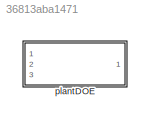
MODEL slx_36813aba1471
KIND library
CONFIG AbsTol = auto
CONFIG EnableMultiTasking = off
CONFIG FixedStep = auto
CONFIG MaxStep = auto
CONFIG MinStep = auto
CONFIG RelTol = 1e-3
CONFIG SampleTimeConstraint = Unconstrained
CONFIG SolverName = VariableStepAuto
CONFIG StartTime = 0.0
CONFIG StopTime = 10.0
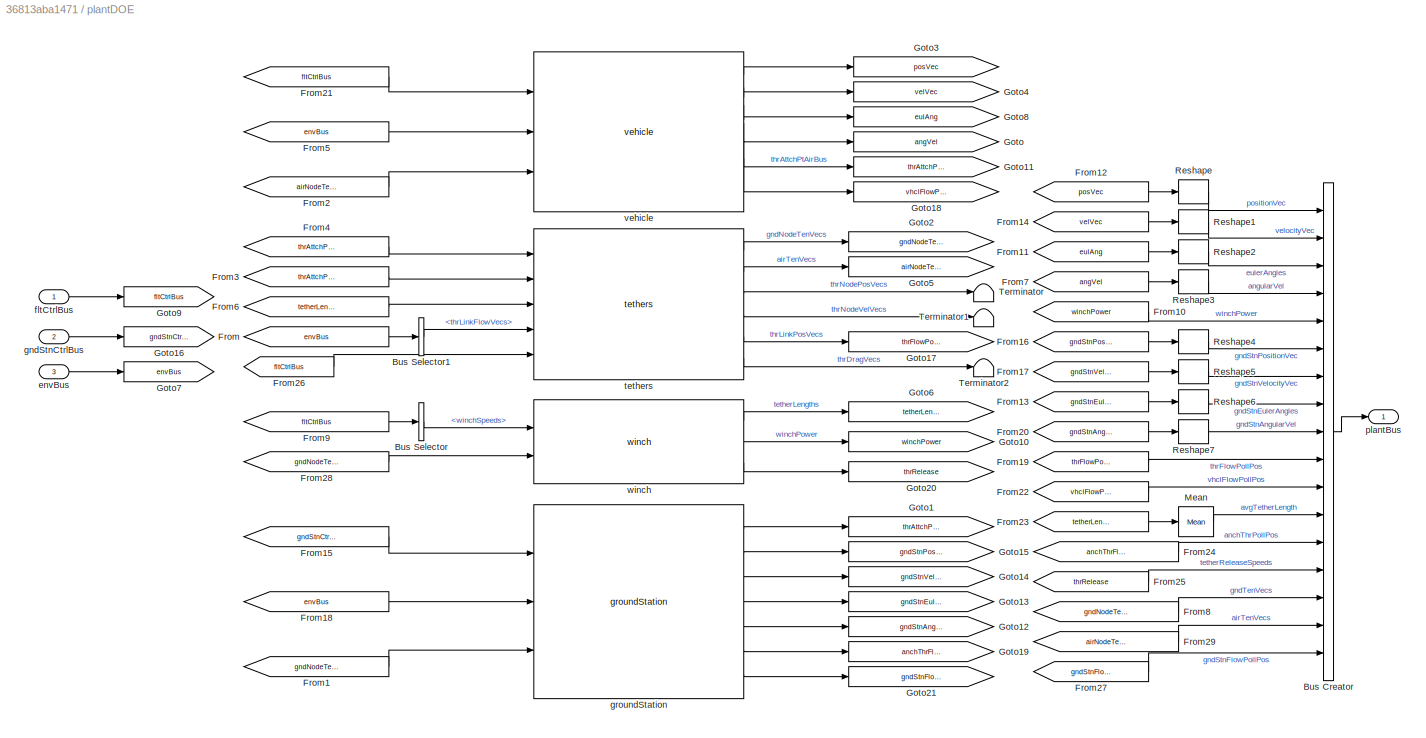
BLOCK [SubSystem] plantDOE
  InitFcn = initializeBussesFromBlock(gcb)
  LoadFcn = initializeBussesFromBlock(gcb)
  Ports = [3, 1]
  RequestExecContextInheritance = off
  StartFcn = initializeBussesFromBlock(gcb)
  VariantControl = VSS_plant_modularPlant
BLOCK [BusCreator] plantDOE/Bus Creator
  DisplayOption = bar
  InheritFromInputs = on
  Inputs = 17
  NonVirtualBus = on
  OutDataTypeStr = Bus: plantBus
  Ports = [17, 1]
BLOCK [BusSelector] plantDOE/Bus Selector
  OutputSignals = winchSpeeds
  Ports = [1, 1]
BLOCK [BusSelector] plantDOE/Bus Selector1
  OutputSignals = thrLinkFlowVecs
  Ports = [1, 1]
BLOCK [From] plantDOE/From
  GotoTag = envBus
BLOCK [From] plantDOE/From1
  GotoTag = gndNodeTenVecs
BLOCK [From] plantDOE/From10
  GotoTag = winchPower
BLOCK [From] plantDOE/From11
  GotoTag = eulAng
BLOCK [From] plantDOE/From12
  GotoTag = posVec
BLOCK [From] plantDOE/From13
  GotoTag = gndStnEulAng
BLOCK [From] plantDOE/From14
  GotoTag = velVec
BLOCK [From] plantDOE/From15
  GotoTag = gndStnCtrlBus
BLOCK [From] plantDOE/From16
  GotoTag = gndStnPosVec
BLOCK [From] plantDOE/From17
  GotoTag = gndStnVelVec
BLOCK [From] plantDOE/From18
  GotoTag = envBus
BLOCK [From] plantDOE/From19
  GotoTag = thrFlowPollPos
BLOCK [From] plantDOE/From2
  GotoTag = airNodeTenVecs
BLOCK [From] plantDOE/From20
  GotoTag = gndStnAngVel
BLOCK [From] plantDOE/From21
  GotoTag = fltCtrlBus
BLOCK [From] plantDOE/From22
  GotoTag = vhclFlowPollPos
BLOCK [From] plantDOE/From23
  GotoTag = tetherLengths
BLOCK [From] plantDOE/From24
  GotoTag = anchThrFlowPollPositions
BLOCK [From] plantDOE/From25
  GotoTag = thrRelease
BLOCK [From] plantDOE/From26
  GotoTag = fltCtrlBus
BLOCK [From] plantDOE/From27
  GotoTag = gndStnFlowPollPos
BLOCK [From] plantDOE/From28
  GotoTag = gndNodeTenVecs
BLOCK [From] plantDOE/From29
  GotoTag = airNodeTenVecs
BLOCK [From] plantDOE/From3
  GotoTag = thrAttchPtAirBus
BLOCK [From] plantDOE/From4
  GotoTag = thrAttchPtGndBus
BLOCK [From] plantDOE/From5
  GotoTag = envBus
BLOCK [From] plantDOE/From6
  GotoTag = tetherLengths
BLOCK [From] plantDOE/From7
  GotoTag = angVel
BLOCK [From] plantDOE/From8
  GotoTag = gndNodeTenVecs
BLOCK [From] plantDOE/From9
  GotoTag = fltCtrlBus
BLOCK [Goto] plantDOE/Goto
  GotoTag = angVel
BLOCK [Goto] plantDOE/Goto1
  GotoTag = thrAttchPtGndBus
BLOCK [Goto] plantDOE/Goto10
  GotoTag = winchPower
BLOCK [Goto] plantDOE/Goto11
  GotoTag = thrAttchPtAirBus
BLOCK [Goto] plantDOE/Goto12
  GotoTag = gndStnAngVel
BLOCK [Goto] plantDOE/Goto13
  GotoTag = gndStnEulAng
BLOCK [Goto] plantDOE/Goto14
  GotoTag = gndStnVelVec
BLOCK [Goto] plantDOE/Goto15
  GotoTag = gndStnPosVec
BLOCK [Goto] plantDOE/Goto16
  GotoTag = gndStnCtrlBus
BLOCK [Goto] plantDOE/Goto17
  GotoTag = thrFlowPollPos
BLOCK [Goto] plantDOE/Goto18
  GotoTag = vhclFlowPollPos
BLOCK [Goto] plantDOE/Goto19
  GotoTag = anchThrFlowPollPositions
BLOCK [Goto] plantDOE/Goto2
  GotoTag = gndNodeTenVecs
BLOCK [Goto] plantDOE/Goto20
  GotoTag = thrRelease
BLOCK [Goto] plantDOE/Goto21
  GotoTag = gndStnFlowPollPos
BLOCK [Goto] plantDOE/Goto3
  GotoTag = posVec
BLOCK [Goto] plantDOE/Goto4
  GotoTag = velVec
BLOCK [Goto] plantDOE/Goto5
  GotoTag = airNodeTenVecs
BLOCK [Goto] plantDOE/Goto6
  GotoTag = tetherLengths
BLOCK [Goto] plantDOE/Goto7
  GotoTag = envBus
BLOCK [Goto] plantDOE/Goto8
  GotoTag = eulAng
BLOCK [Goto] plantDOE/Goto9
  GotoTag = fltCtrlBus
BLOCK [Reference] plantDOE/Mean  REF=dspstat3/Mean
  Ports = [1, 1]
  SourceBlock = dspstat3/Mean
  SourceProductBaseCode = DS
  SourceType = Mean
  UserDataPersistent = on
BLOCK [Reshape] plantDOE/Reshape
  OutputDimensionality = Column vector (2-D)
  Ports = [1, 1]
BLOCK [Reshape] plantDOE/Reshape1
  OutputDimensionality = Column vector (2-D)
  Ports = [1, 1]
BLOCK [Reshape] plantDOE/Reshape2
  OutputDimensionality = Column vector (2-D)
  Ports = [1, 1]
BLOCK [Reshape] plantDOE/Reshape3
  OutputDimensionality = Column vector (2-D)
  Ports = [1, 1]
BLOCK [Reshape] plantDOE/Reshape4
  OutputDimensionality = Column vector (2-D)
  Ports = [1, 1]
BLOCK [Reshape] plantDOE/Reshape5
  OutputDimensionality = Column vector (2-D)
  Ports = [1, 1]
BLOCK [Reshape] plantDOE/Reshape6
  OutputDimensionality = Column vector (2-D)
  Ports = [1, 1]
BLOCK [Reshape] plantDOE/Reshape7
  OutputDimensionality = Column vector (2-D)
  Ports = [1, 1]
BLOCK [Terminator] plantDOE/Terminator
BLOCK [Terminator] plantDOE/Terminator1
BLOCK [Terminator] plantDOE/Terminator2
BLOCK [Inport] plantDOE/envBus
  OutDataTypeStr = Bus: envBus
  Port = 3
BLOCK [Inport] plantDOE/fltCtrlBus
  OutDataTypeStr = Bus: fltCtrlBus
BLOCK [Inport] plantDOE/gndStnCtrlBus
  OutDataTypeStr = Bus: gndStnCtrlBus
  Port = 2
BLOCK [Reference] plantDOE/groundStation  REF=groundStation_cl/groundStation
  Ports = [3, 7]
  SourceBlock = groundStation_cl/groundStation
BLOCK [Outport] plantDOE/plantBus
  OutDataTypeStr = Bus: plantBus
  VectorParamsAs1DForOutWhenUnconnected = off
BLOCK [Reference] plantDOE/tethers  REF=tethers_cl/tethers
  Ports = [5, 6]
  SourceBlock = tethers_cl/tethers
BLOCK [Reference] plantDOE/vehicle  REF=vehicle_cl/vehicle  (lib defined in slx_18c89c889f27)
  Ports = [3, 8]
  SourceBlock = vehicle_cl/vehicle
BLOCK [Reference] plantDOE/winch  REF=winch_cl/winch
  Ports = [2, 3]
  SourceBlock = winch_cl/winch
LINE plantDOE/Bus Creator:1 -> plantDOE/plantBus:1
LINE plantDOE/Bus Selector1:1 -> plantDOE/tethers:4
LINE plantDOE/Bus Selector:1 -> plantDOE/winch:1
LINE plantDOE/From10:1 -> plantDOE/Bus Creator:5
LINE plantDOE/From11:1 -> plantDOE/Reshape2:1
LINE plantDOE/From12:1 -> plantDOE/Reshape:1
LINE plantDOE/From13:1 -> plantDOE/Reshape6:1
LINE plantDOE/From14:1 -> plantDOE/Reshape1:1
LINE plantDOE/From15:1 -> plantDOE/groundStation:1
LINE plantDOE/From16:1 -> plantDOE/Reshape4:1
LINE plantDOE/From17:1 -> plantDOE/Reshape5:1
LINE plantDOE/From18:1 -> plantDOE/groundStation:2
LINE plantDOE/From19:1 -> plantDOE/Bus Creator:10
LINE plantDOE/From1:1 -> plantDOE/groundStation:3
LINE plantDOE/From20:1 -> plantDOE/Reshape7:1
LINE plantDOE/From21:1 -> plantDOE/vehicle:1
LINE plantDOE/From22:1 -> plantDOE/Bus Creator:11
LINE plantDOE/From23:1 -> plantDOE/Mean:1
LINE plantDOE/From24:1 -> plantDOE/Bus Creator:13
LINE plantDOE/From25:1 -> plantDOE/Bus Creator:14
LINE plantDOE/From26:1 -> plantDOE/tethers:5
LINE plantDOE/From27:1 -> plantDOE/Bus Creator:17
LINE plantDOE/From28:1 -> plantDOE/winch:2
LINE plantDOE/From29:1 -> plantDOE/Bus Creator:16
LINE plantDOE/From2:1 -> plantDOE/vehicle:3
LINE plantDOE/From3:1 -> plantDOE/tethers:2
LINE plantDOE/From4:1 -> plantDOE/tethers:1
LINE plantDOE/From5:1 -> plantDOE/vehicle:2
LINE plantDOE/From6:1 -> plantDOE/tethers:3
LINE plantDOE/From7:1 -> plantDOE/Reshape3:1
LINE plantDOE/From8:1 -> plantDOE/Bus Creator:15
LINE plantDOE/From9:1 -> plantDOE/Bus Selector:1
LINE plantDOE/From:1 -> plantDOE/Bus Selector1:1
LINE plantDOE/Mean:1 -> plantDOE/Bus Creator:12
LINE plantDOE/Reshape1:1 -> plantDOE/Bus Creator:2
LINE plantDOE/Reshape2:1 -> plantDOE/Bus Creator:3
LINE plantDOE/Reshape3:1 -> plantDOE/Bus Creator:4
LINE plantDOE/Reshape4:1 -> plantDOE/Bus Creator:6
LINE plantDOE/Reshape5:1 -> plantDOE/Bus Creator:7
LINE plantDOE/Reshape6:1 -> plantDOE/Bus Creator:8
LINE plantDOE/Reshape7:1 -> plantDOE/Bus Creator:9
LINE plantDOE/Reshape:1 -> plantDOE/Bus Creator:1
LINE plantDOE/envBus:1 -> plantDOE/Goto7:1
LINE plantDOE/fltCtrlBus:1 -> plantDOE/Goto9:1
LINE plantDOE/gndStnCtrlBus:1 -> plantDOE/Goto16:1
LINE plantDOE/groundStation:1 -> plantDOE/Goto1:1
LINE plantDOE/groundStation:2 -> plantDOE/Goto15:1
LINE plantDOE/groundStation:3 -> plantDOE/Goto14:1
LINE plantDOE/groundStation:4 -> plantDOE/Goto13:1
LINE plantDOE/groundStation:5 -> plantDOE/Goto12:1
LINE plantDOE/groundStation:6 -> plantDOE/Goto19:1
LINE plantDOE/groundStation:7 -> plantDOE/Goto21:1
LINE plantDOE/tethers:1 -> plantDOE/Goto2:1
LINE plantDOE/tethers:2 -> plantDOE/Goto5:1
LINE plantDOE/tethers:3 -> plantDOE/Terminator:1
LINE plantDOE/tethers:4 -> plantDOE/Terminator1:1
LINE plantDOE/tethers:5 -> plantDOE/Goto17:1
LINE plantDOE/tethers:6 -> plantDOE/Terminator2:1
LINE plantDOE/vehicle:1 -> plantDOE/Goto3:1
LINE plantDOE/vehicle:2 -> plantDOE/Goto4:1
LINE plantDOE/vehicle:3 -> plantDOE/Goto8:1
LINE plantDOE/vehicle:4 -> plantDOE/Goto:1
LINE plantDOE/vehicle:5 -> plantDOE/Goto11:1
LINE plantDOE/vehicle:6 -> plantDOE/Goto18:1
LINE plantDOE/winch:1 -> plantDOE/Goto6:1
LINE plantDOE/winch:2 -> plantDOE/Goto10:1
LINE plantDOE/winch:3 -> plantDOE/Goto20:1
